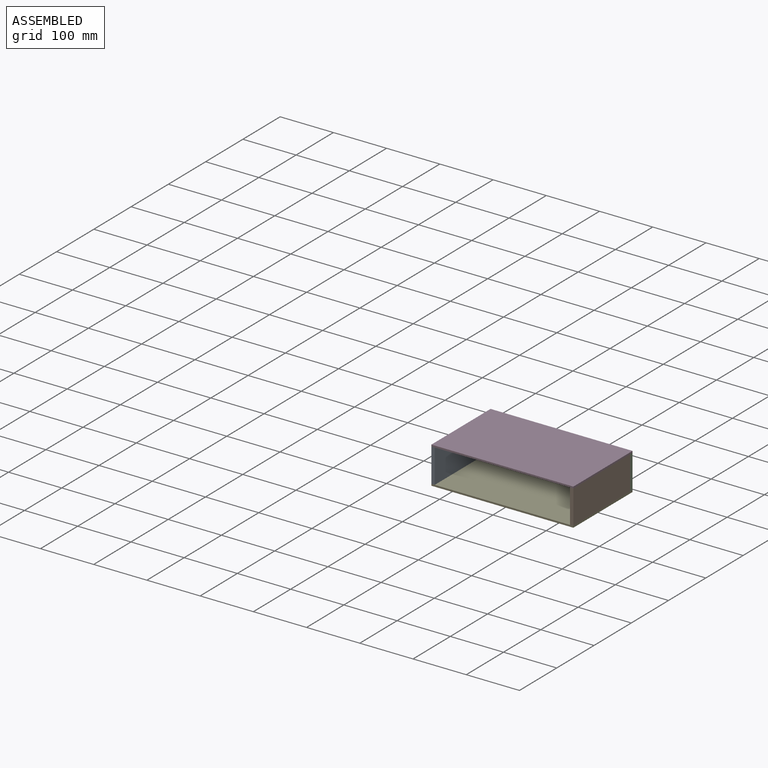
[diagram: assembled view]
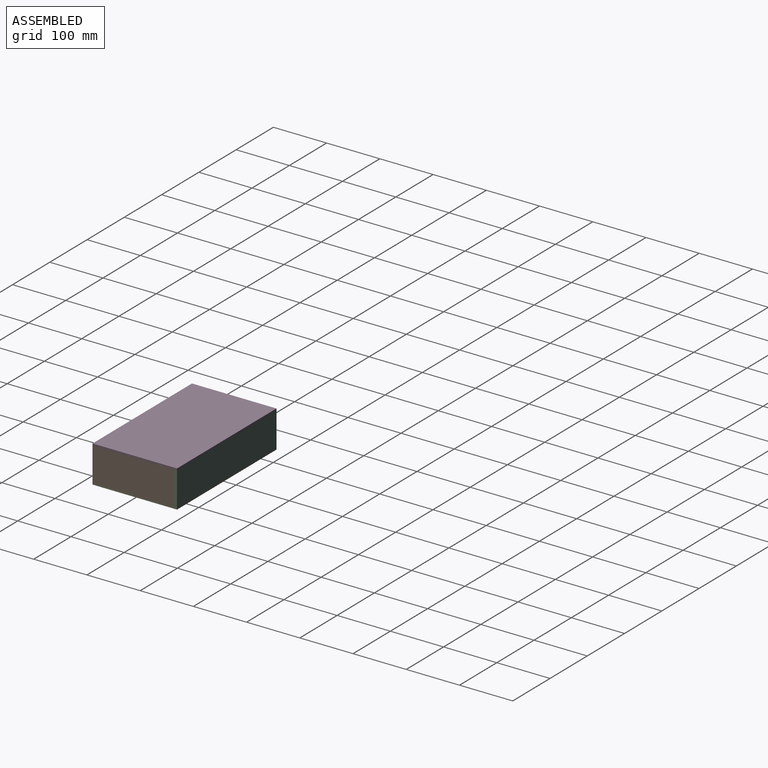
[diagram: assembled view, second angle]
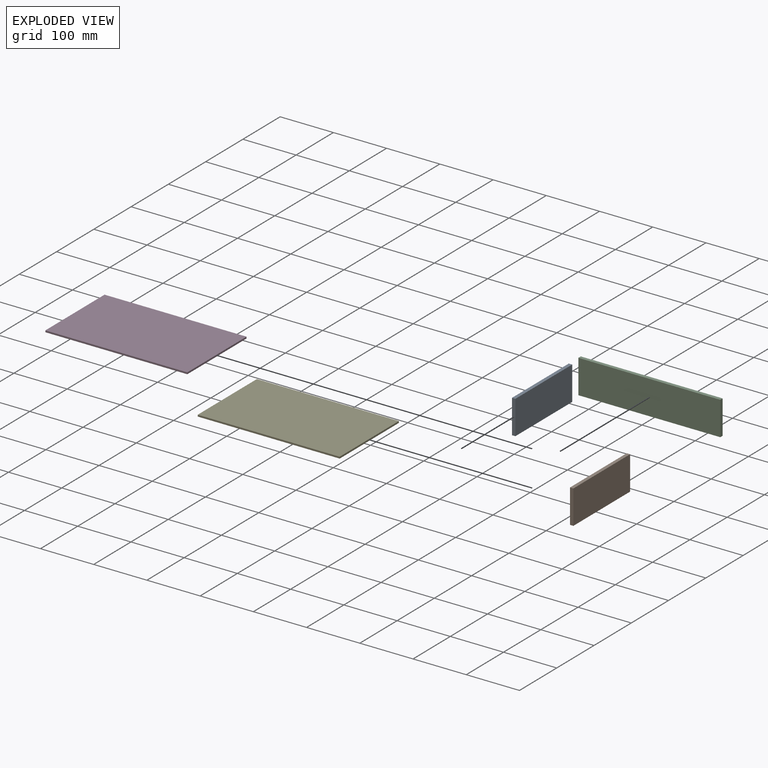
[diagram: exploded view]
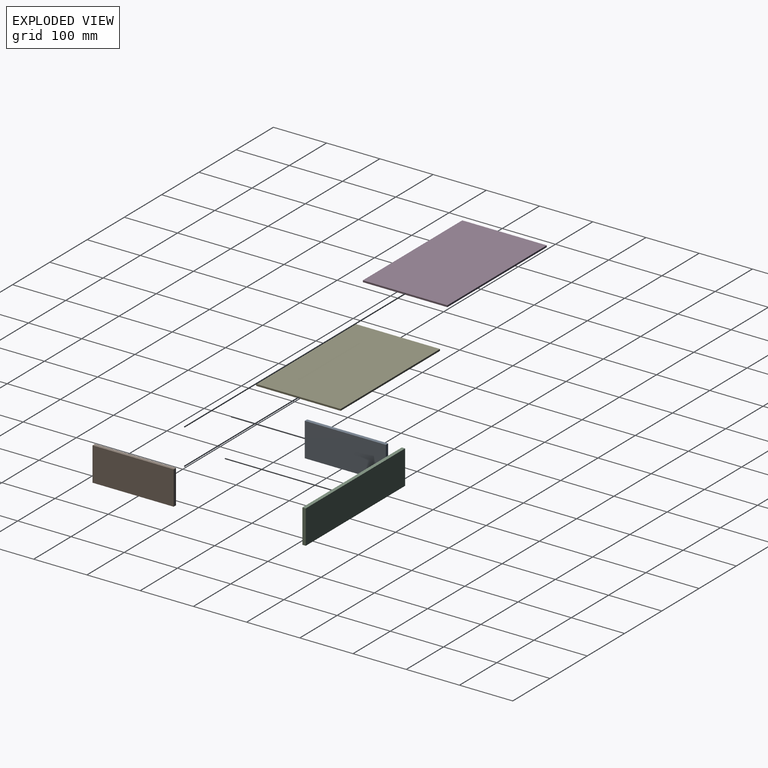
[diagram: exploded view, second angle]
ASSEMBLY  parts=5 mates=12
PART A: 6 faces, bbox 6.4x152.4x63.5 mm
  f0: plane 152.4x63.5mm, normal (1,0,0), area 9677.4mm2, adj f1,f3,f4,f5
  f1: plane 63.5x6.35mm, normal (0,1,0), area 403.2mm2, adj f0,f2,f4,f5
  f2: plane 152.4x63.5mm, normal (-1,0,0), area 9677.4mm2, adj f1,f3,f4,f5
  f3: plane 63.5x6.35mm, normal (0,-1,0), area 403.2mm2, adj f0,f2,f4,f5
  f4: plane 152.4x6.35mm, normal (0,0,-1), area 967.7mm2, adj f0,f1,f2,f3
  f5: plane 152.4x6.35mm, normal (0,0,1), area 967.7mm2, adj f0,f1,f2,f3
PART B: same geometry as A
PART C: 6 faces, bbox 266.7x6.4x63.5 mm
  f0: plane 63.5x6.35mm, normal (1,0,0), area 403.2mm2, adj f1,f3,f4,f5
  f1: plane 266.7x63.5mm, normal (0,1,0), area 16935.5mm2, adj f0,f2,f4,f5
  f2: plane 63.5x6.35mm, normal (-1,0,0), area 403.2mm2, adj f1,f3,f4,f5
  f3: plane 266.7x63.5mm, normal (0,-1,0), area 16935.5mm2, adj f0,f2,f4,f5
  f4: plane 266.7x6.35mm, normal (0,0,-1), area 1693.5mm2, adj f0,f1,f2,f3
  f5: plane 266.7x6.35mm, normal (0,0,1), area 1693.5mm2, adj f0,f1,f2,f3
PART D: 6 faces, bbox 266.7x158.8x3.2 mm
  f0: plane 266.7x3.18mm, normal (0,1,0), area 846.8mm2, adj f1,f3,f4,f5
  f1: plane 158.75x3.18mm, normal (-1,0,0), area 504mm2, adj f0,f2,f4,f5
  f2: plane 266.7x3.18mm, normal (0,-1,0), area 846.8mm2, adj f1,f3,f4,f5
  f3: plane 158.75x3.18mm, normal (1,0,0), area 504mm2, adj f0,f2,f4,f5
  f4: plane 266.7x158.75mm, normal (0,0,1), area 42338.6mm2, adj f0,f1,f2,f3
  f5: plane 266.7x158.75mm, normal (0,0,-1), area 42338.6mm2, adj f0,f1,f2,f3
PART E: same geometry as D
PLACE A t=(-129.46,0.62,70.16)mm
PLACE B t=(130.89,0.62,70.16)mm
PLACE C t=(0.72,80,70.16)mm
PLACE D t=(0.72,0.62,70.16)mm
PLACE E t=(0.72,0.62,3.49)mm fixed
MATE planar C.f3 <-> B.f1  axis (0,-1,0) through (0.72,76.82,38.41)mm
MATE planar A.f2 <-> E.f1  axis (-1,0,0) through (-132.63,0.62,38.41)mm
MATE planar A.f4 <-> E.f4  axis (0,0,-1) through (-129.46,0.62,6.66)mm
MATE planar B.f5 <-> C.f5  axis (0,0,1) through (130.89,0.62,70.16)mm
MATE planar C.f0 <-> B.f0  axis (1,0,0) through (134.07,80,38.41)mm
MATE planar D.f3 <-> B.f0  axis (1,0,0) through (134.07,3.8,71.75)mm
MATE planar B.f0 <-> E.f3  axis (1,0,0) through (134.07,0.62,38.41)mm
MATE planar B.f4 <-> E.f4  axis (0,0,-1) through (130.89,0.62,6.66)mm
MATE planar D.f2 <-> A.f3  axis (0,-1,0) through (0.72,-75.58,71.75)mm
MATE planar B.f3 <-> E.f2  axis (0,-1,0) through (130.89,-75.58,38.41)mm
MATE planar A.f3 <-> E.f2  axis (0,-1,0) through (-129.46,-75.58,38.41)mm
MATE planar D.f5 <-> A.f5  axis (0,0,-1) through (0.72,3.8,70.16)mm
